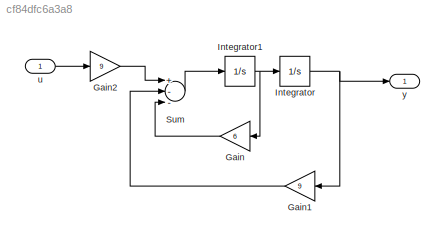
MODEL slx_cf84dfc6a3a8
KIND model
BLOCK [Gain] Gain
  Gain = 6
BLOCK [Gain] Gain1
  Gain = 9
BLOCK [Gain] Gain2
  Gain = 9
BLOCK [Integrator] Integrator
  Ports = [1, 1]
BLOCK [Integrator] Integrator1
  Ports = [1, 1]
BLOCK [Sum] Sum
  Inputs = +--
  Ports = [3, 1]
BLOCK [Inport] u
  IconDisplay = Port number
BLOCK [Outport] y
  IconDisplay = Port number
LINE Gain1:1 -> Sum:2
LINE Gain2:1 -> Sum:1
LINE Gain:1 -> Sum:3
NET Integrator1:1 -> Gain:1, Integrator:1
NET Integrator:1 -> Gain1:1, y:1
LINE Sum:1 -> Integrator1:1
LINE u:1 -> Gain2:1
note: NET lines group one-source signal fan-out (src -> all destinations, sorted); 1:1 wires keep LINE
